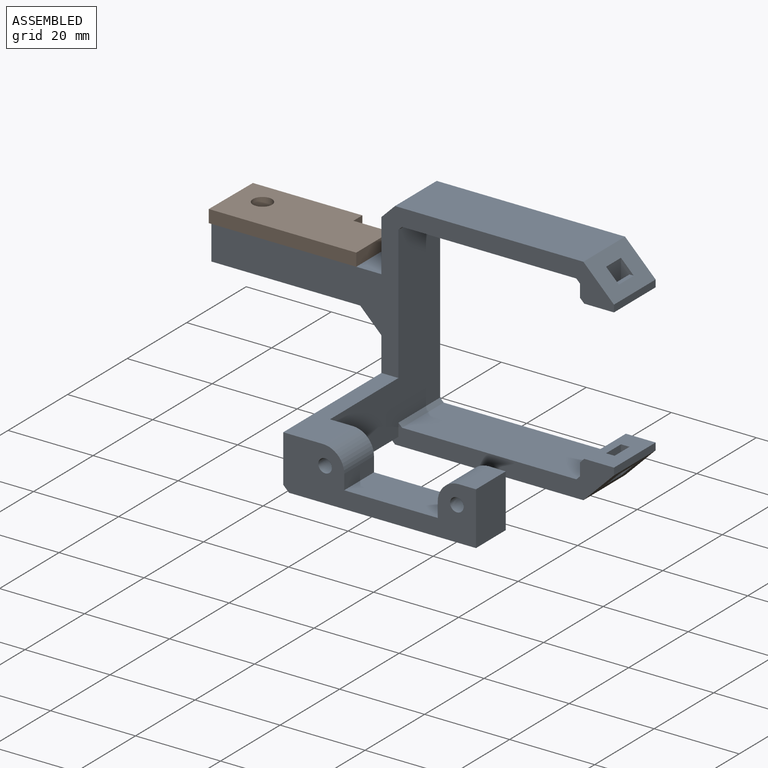
[diagram: assembled view]
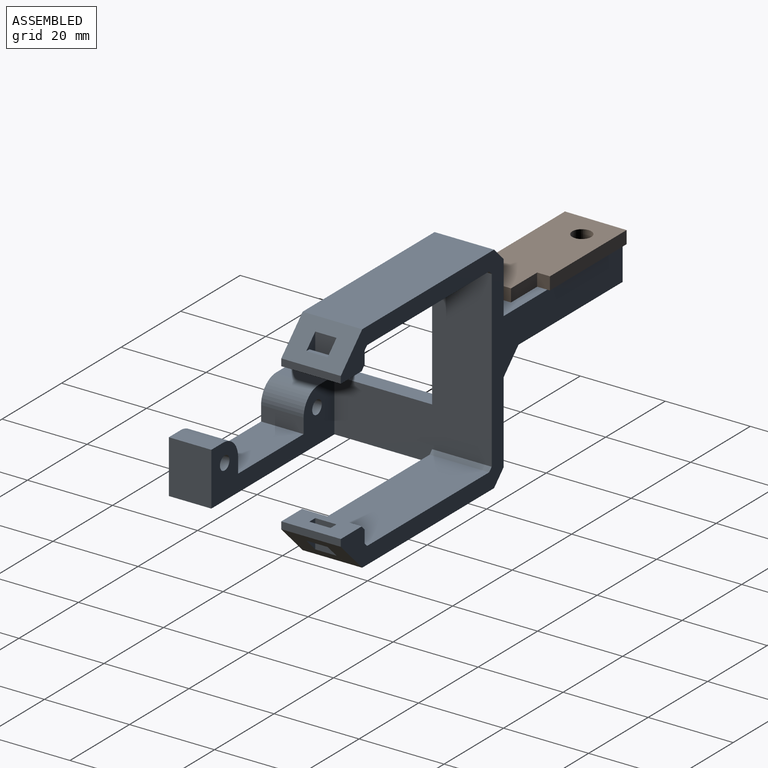
[diagram: assembled view, second angle]
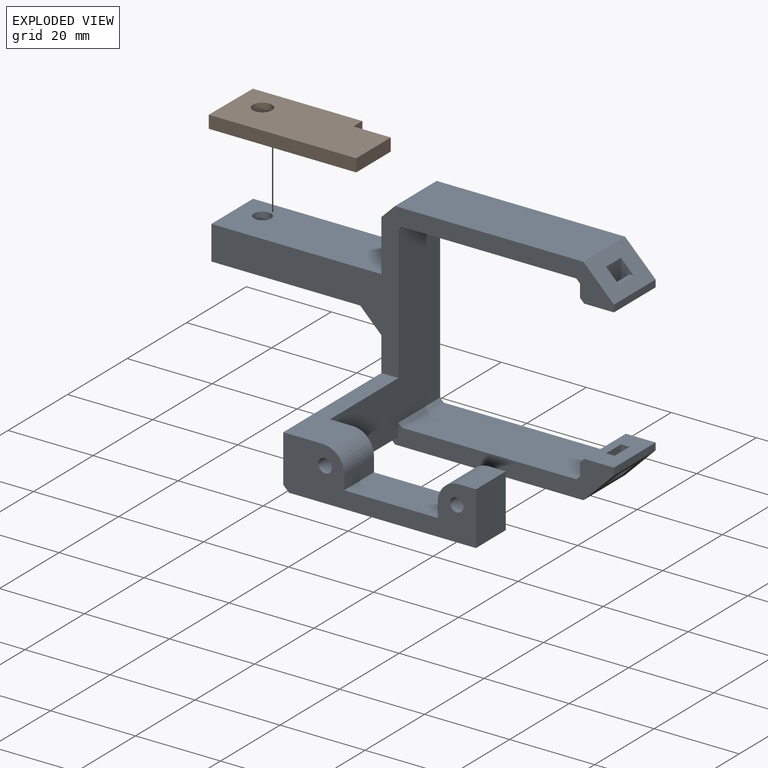
[diagram: exploded view]
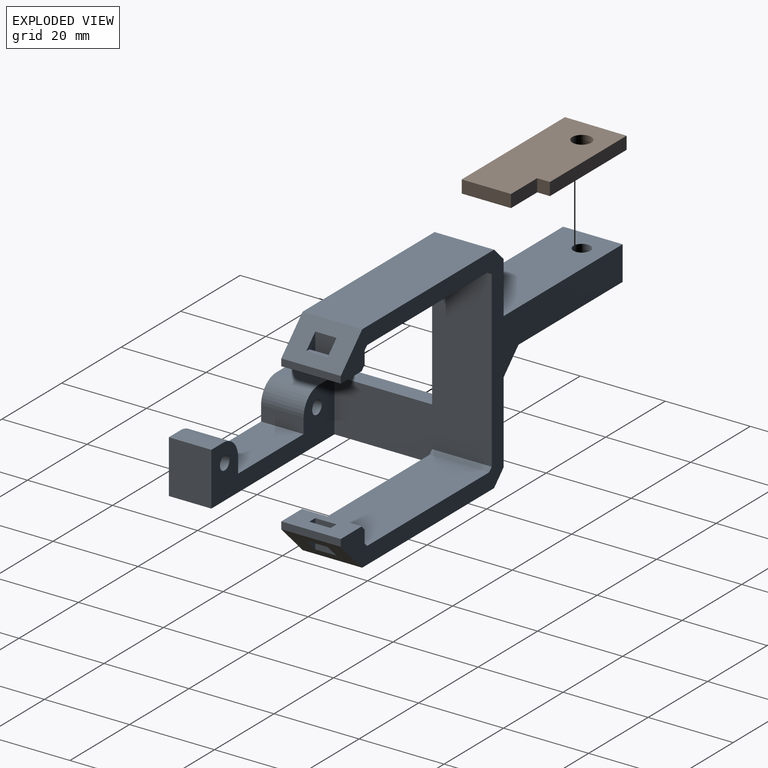
[diagram: exploded view, second angle]
ASSEMBLY  parts=2 mates=2
PART A: 55 faces, bbox 94.7x47x50.7 mm
  f0: plane 14x7.19mm, normal (0.71,0,-0.71), area 121.2mm2, adj f19,f20,f24,f43,f46,f47,f48,f54
  f1: plane 14x7.19mm, normal (0.71,0,0.71), area 121.2mm2, adj f19,f27,f34,f41,f49,f50,f51,f53
  f2: plane 14x7mm, normal (0,0,-1), area 88mm2, adj f19,f27,f41,f42,f49,f50,f51,f52
  f3: plane 14x7mm, normal (0,0,1), area 88mm2, adj f19,f24,f43,f44,f45,f46,f47,f48
  f4: plane 33x9.35mm, normal (0,0,1), area 185.5mm2, adj f7,f15,f16,f17,f18,f27
  f5: plane 22x10mm, normal (0,0,1), area 220mm2, adj f6,f14,f15,f16
  f6: plane 10x3.5mm, normal (1,0,0), area 35mm2, adj f5,f7,f15,f16
  f7: cylinder r=5mm len=10mm, axis (0,-1,0), area 78.5mm2, adj f4,f6,f15,f16
  f8: plane 44.01x33mm, normal (0,0,-1), area 500.9mm2, adj f9,f15,f16,f17,f24,f39
  f9: plane 12.5x10mm, normal (1,0,0), area 125mm2, adj f8,f10,f15,f16
  f10: plane 10x4mm, normal (0,0,1), area 40mm2, adj f9,f11,f15,f16
  f11: cylinder r=5mm len=10mm, axis (0,-1,0), area 78.5mm2, adj f10,f14,f15,f16
  f12: cylinder r=1.6mm len=10mm, axis (0,-1,0), area 100.5mm2, adj f15,f16
  f13: cylinder r=1.6mm len=10mm, axis (0,-1,0), area 100.5mm2, adj f15,f16
  f14: plane 10x3.5mm, normal (-1,0,0), area 35mm2, adj f5,f11,f15,f16
  f15: plane 41.35x12.5mm, normal (0,1,0), area 303.1mm2, adj f4,f5,f6,f7,f8,f9,f10,f11
  f16: plane 45.35x12.5mm, normal (0,-1,0), area 352.1mm2, adj f4,f5,f6,f7,f8,f9,f10,f11
  f17: plane 44x37mm, normal (1,0,0), area 861.5mm2, adj f4,f8,f15,f19,f24,f26,f27,f28
  f18: plane 47x19.15mm, normal (-1,0,0), area 636mm2, adj f4,f16,f19,f27,f39,f40
  f19: plane 94.7x50.7mm, normal (0,1,0), area 957.1mm2, adj f0,f1,f2,f3,f17,f18,f20,f21
  f20: plane 44.31x14mm, normal (0,0,-1), area 620.4mm2, adj f0,f19,f24,f25
  f21: plane 14x3mm, normal (-1,0,0), area 42mm2, adj f19,f22,f24,f44
  f22: plane 14x0.85mm, normal (-0.71,0,0.71), area 16.8mm2, adj f19,f21,f23,f24
  f23: plane 41x14mm, normal (0,0,1), area 574mm2, adj f19,f22,f24,f26
  f24: plane 53.36x8.85mm, normal (0,-1,0), area 219.1mm2, adj f0,f3,f8,f17,f20,f21,f22,f23
  f25: plane 14.01x1.86mm, normal (-0.71,0,-0.71), area 36.6mm2, adj f19,f20,f24,f39
  f26: plane 14x0.85mm, normal (0.71,0,0.71), area 16.8mm2, adj f17,f19,f23,f24
  f27: plane 94.7x36.35mm, normal (0,-1,0), area 688.8mm2, adj f1,f2,f4,f17,f18,f28,f29,f30
  f28: plane 14x0.85mm, normal (0.71,0,-0.71), area 16.8mm2, adj f17,f19,f27,f37
  f29: plane 35x14mm, normal (0,0,-1), area 477.4mm2, adj f19,f27,f30,f38,f40
  f30: plane 14x8mm, normal (-1,0,0), area 112mm2, adj f19,f27,f29,f31
  f31: plane 40x14mm, normal (0,0,1), area 547.4mm2, adj f19,f27,f30,f32,f38
  f32: plane 14x12.16mm, normal (-1,0,0), area 170.2mm2, adj f19,f27,f31,f33
  f33: plane 14x3.19mm, normal (-0.71,0,0.71), area 63.2mm2, adj f19,f27,f32,f34
  f34: plane 44.31x14mm, normal (0,0,1), area 620.4mm2, adj f1,f19,f27,f33
  f35: plane 14x3mm, normal (-1,0,0), area 42mm2, adj f19,f27,f36,f42
  f36: plane 14x0.85mm, normal (-0.71,0,-0.71), area 16.8mm2, adj f19,f27,f35,f37
  f37: plane 41x14mm, normal (0,0,-1), area 574mm2, adj f19,f27,f28,f36
  f38: cylinder r=2mm len=8mm, axis (0,0,1), area 100.5mm2, adj f29,f31
  f39: plane 47.01x1.36mm, normal (-0.71,0,-0.71), area 89.5mm2, adj f8,f16,f18,f19,f25
  f40: plane 14x5mm, normal (-0.71,0,-0.71), area 99mm2, adj f18,f19,f27,f29
  f41: plane 14x1.66mm, normal (1,0,0), area 23.2mm2, adj f1,f2,f19,f27
  f42: plane 14x1mm, normal (-0.71,0,-0.71), area 19.8mm2, adj f2,f19,f27,f35
  f43: plane 14x1.66mm, normal (1,0,0), area 23.2mm2, adj f0,f3,f19,f24
  f44: plane 14x1mm, normal (-0.71,0,0.71), area 19.8mm2, adj f3,f19,f21,f24
  f45: plane 5x3.66mm, normal (-1,0,0), area 18.3mm2, adj f3,f46,f48,f54
  f46: plane 6.66x3mm, normal (0,1,0), area 11.8mm2, adj f0,f3,f45,f47,f54
  f47: plane 6.66x5mm, normal (1,0,0), area 33.3mm2, adj f0,f3,f46,f48
  f48: plane 6.66x3mm, normal (0,-1,0), area 11.8mm2, adj f0,f3,f45,f47,f54
  f49: plane 6.66x3mm, normal (0,-1,0), area 11.8mm2, adj f1,f2,f50,f52,f53
  f50: plane 6.66x5mm, normal (1,0,0), area 33.3mm2, adj f1,f2,f49,f51
  f51: plane 6.66x3mm, normal (0,1,0), area 11.8mm2, adj f1,f2,f50,f52,f53
  f52: plane 5x3.66mm, normal (-1,0,0), area 18.3mm2, adj f2,f49,f51,f53
  f53: plane 5x1mm, normal (0,0,1), area 5mm2, adj f1,f49,f51,f52
  f54: plane 5x1mm, normal (0,0,-1), area 5mm2, adj f0,f45,f46,f48
PART B: 9 faces, bbox 34.7x3x14.6 mm
  f0: plane 25.75x3mm, normal (0,0,1), area 77.3mm2, adj f1,f5,f7,f8
  f1: plane 14.6x3mm, normal (-1,0,0.01), area 43.8mm2, adj f0,f2,f7,f8
  f2: plane 34.68x3mm, normal (0,0,-1), area 104mm2, adj f1,f3,f7,f8
  f3: plane 11.6x3mm, normal (1,0,0), area 34.8mm2, adj f2,f4,f7,f8
  f4: plane 8.79x3mm, normal (0,0,1), area 26.4mm2, adj f3,f5,f7,f8
  f5: plane 3x3mm, normal (1,0,0), area 9mm2, adj f0,f4,f7,f8
  f6: cylinder r=2.25mm len=4.5mm, axis (0,1,0), area 42.4mm2, adj f7,f8
  f7: plane 34.68x14.6mm, normal (0,-1,0), area 463mm2, adj f0,f1,f2,f3,f4,f5,f6
  f8: plane 34.68x14.6mm, normal (0,1,0), area 463mm2, adj f0,f1,f2,f3,f4,f5,f6
PLACE A t=(-41.87,-60.05,-22.45)mm fixed
PLACE B rot(axis=(-1,0,0),90deg) t=(4.51,14.07,7.05)mm
MATE planar A.f31 <-> B.f8  axis (0,0,1) through (-86.9,-20.09,7.05)mm
MATE cylindrical B.f6 <-> A.f38  axis (0,0,-1) through (-101.22,-18.45,8.55)mm
